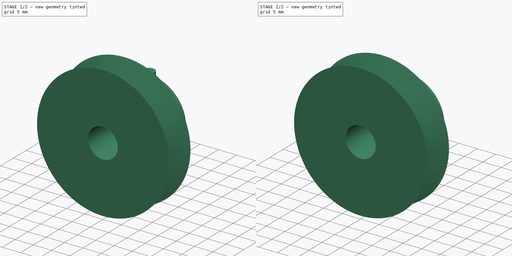
[diagram: build sequence overview — one tinted view per stage of 2, left to right]
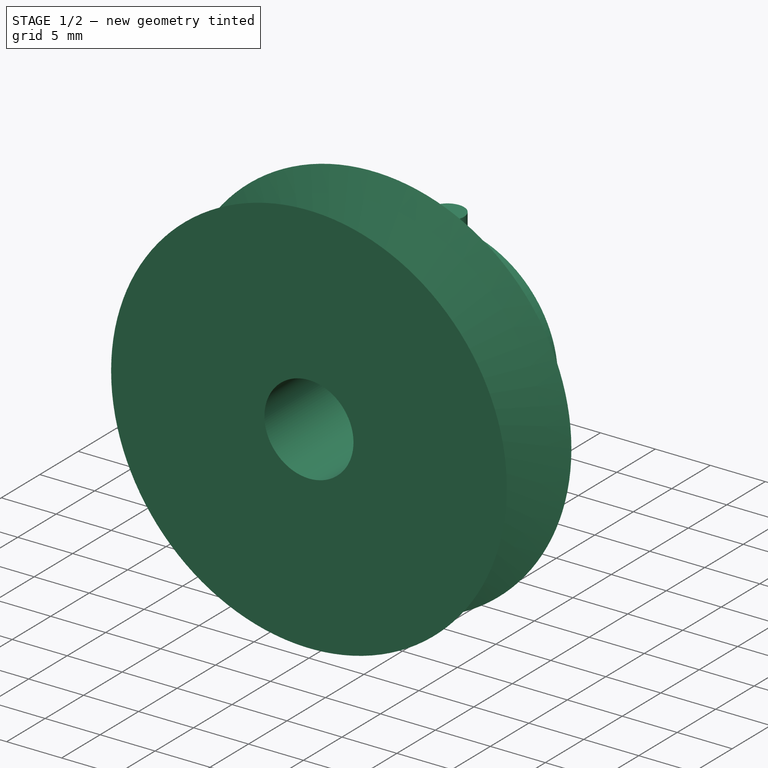
[diagram: stage 1 of 2 — iso view after this stage's code; geometry added in this stage tinted green]
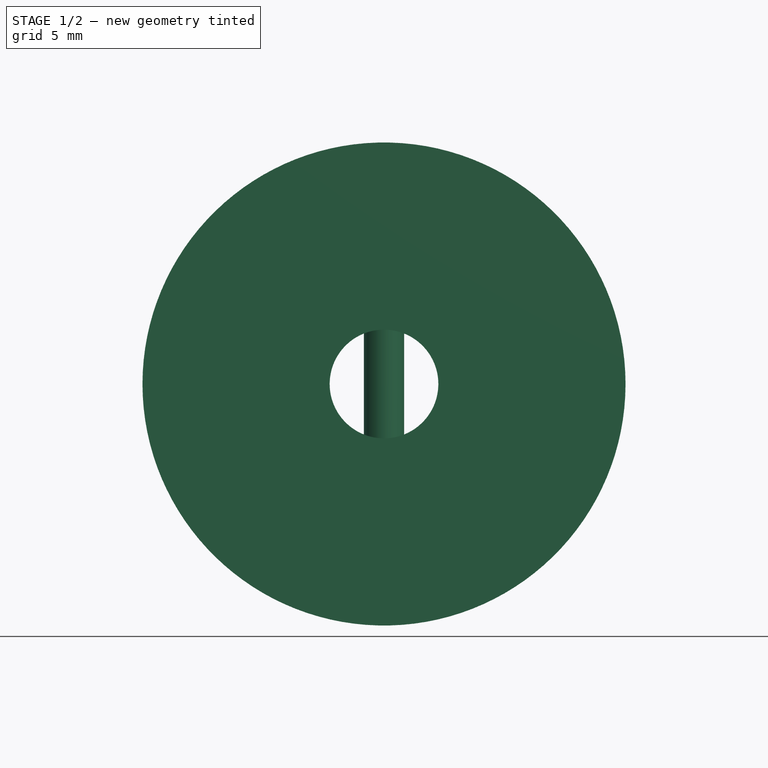
[diagram: stage 1 of 2 — front view after this stage's code; geometry added in this stage tinted green]
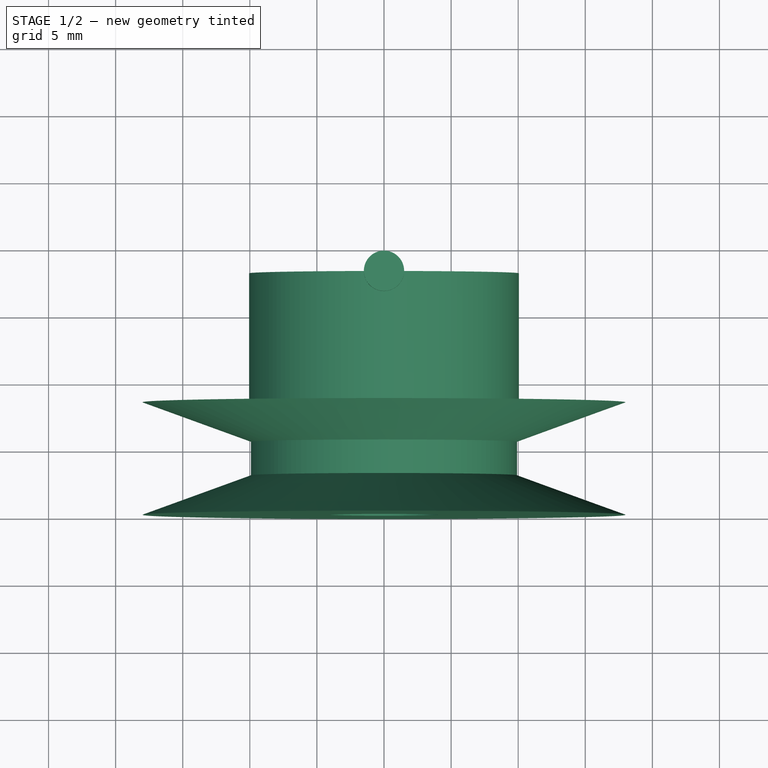
[diagram: stage 1 of 2 — top view after this stage's code; geometry added in this stage tinted green]
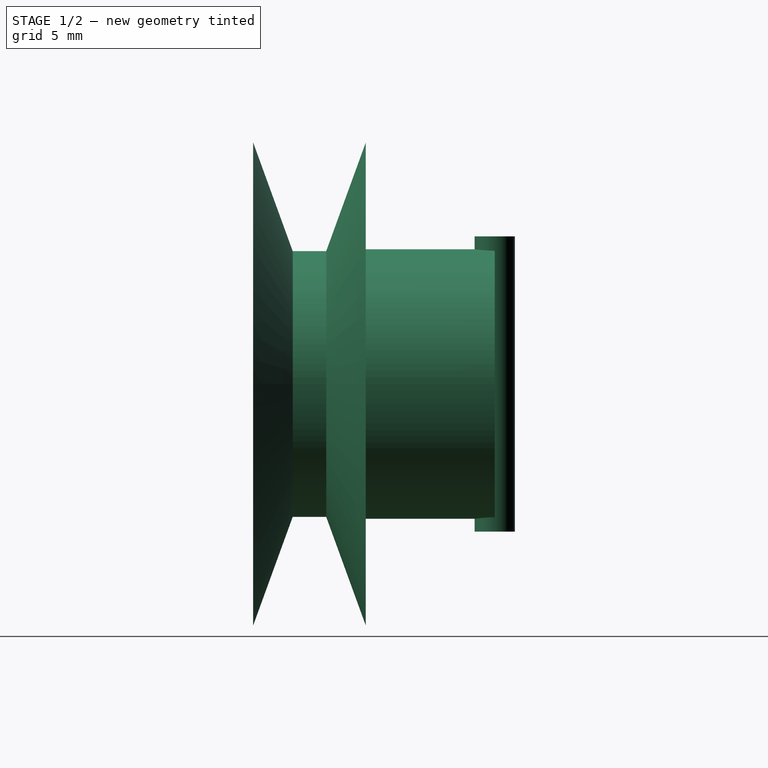
[diagram: stage 1 of 2 — right view after this stage's code; geometry added in this stage tinted green]
FCSTD DOCUMENT  (FreeCAD 0.18R16110 (Git))
Label: pulleysmall
License: All rights reserved
LicenseURL: http://en.wikipedia.org/wiki/All_rights_reserved
objects: Sketcher::SketchObject×1, Part::Revolution×1, Part::Cylinder×1, Part::Cut×1
note: 4 computed .brp shape members not serialized (recipe doc carries the construction recipe); baked Part::Feature solids carry a one-line shape summary decoded from their .brp

FEATURE [Sketcher::SketchObject] Sketch
  sketch-geometry (8):
    g0: LineSegment StartX=4.05 StartY=0 StartZ=0 EndX=4.05 EndY=18 EndZ=0
    g1: LineSegment StartX=4.05 StartY=18 StartZ=0 EndX=10.05 EndY=18 EndZ=0
    g2: LineSegment StartX=10.05 StartY=18 StartZ=0 EndX=10.05 EndY=8.38959 EndZ=0
    g3: LineSegment StartX=10.05 StartY=8.38959 StartZ=0 EndX=18 EndY=8.38959 EndZ=0
    g4: LineSegment StartX=18 StartY=8.38959 StartZ=0 EndX=9.90925 EndY=5.44479 EndZ=0
    g5: LineSegment StartX=9.90925 StartY=5.44479 StartZ=0 EndX=9.90925 EndY=2.94479 EndZ=0
    g6: LineSegment StartX=9.90925 StartY=2.94479 StartZ=0 EndX=18 EndY=4e-16 EndZ=0
    g7: LineSegment StartX=18 StartY=4e-16 StartZ=0 EndX=4.05 EndY=0 EndZ=0
  constraints (24):
    c: PointOnObject(g0,g-1)
    c: Vertical(g0)
    c: Coincident(g0,g1)
    c: Horizontal(g1)
    c: Coincident(g1,g2)
    c: Vertical(g2)
    c: Coincident(g2,g3)
    c: Horizontal(g3)
    c: Coincident(g3,g4)
    c: Coincident(g4,g5)
    c: Vertical(g5)
    c: Coincident(g5,g6)
    c: PointOnObject(g6,g-1)
    c: Coincident(g6,g7)
    c: Coincident(g7,g0)
    c: Distance(g5) = 2.5
    c: Equal(g6,g4)
    c: Distance(g6) = 8.61
    c: Angle(g6,g4) = 0.698132
    c: DistanceX(g0) = 4.05
    c: Distance(g0) = 18
    c: Distance(g1) = 6
    c: Angle(g3,g4) = 0.349066
    c: DistanceX(g6) = 18
FEATURE [Part::Revolution] Revolve
  Angle = 360
  Axis = (0,1,0)
  Base = (0,0,0)
  FaceMakerClass = Part::FaceMakerBullseye
  Solid = true
  Source = -> Sketch
  Symmetric = false
FEATURE [Part::Cylinder] Cylinder
  Angle = 360
  AttacherType = Attacher::AttachEngine3D
  Height = 22
  Placement = pos=(0,18,-11) rot=(0,0,1;0rad)
  Radius = 1.5
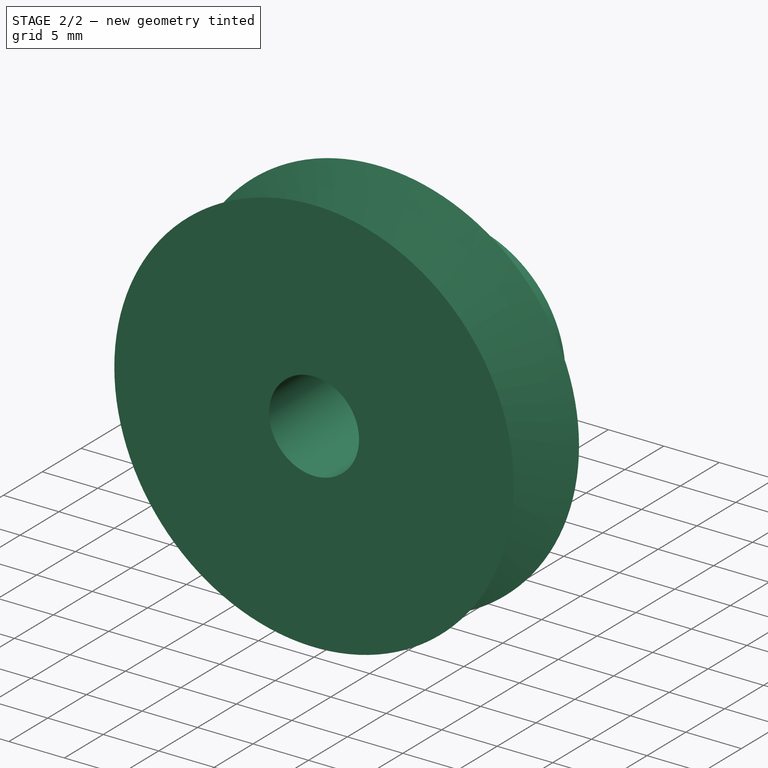
[diagram: stage 2 of 2 — iso view after this stage's code; geometry added in this stage tinted green]
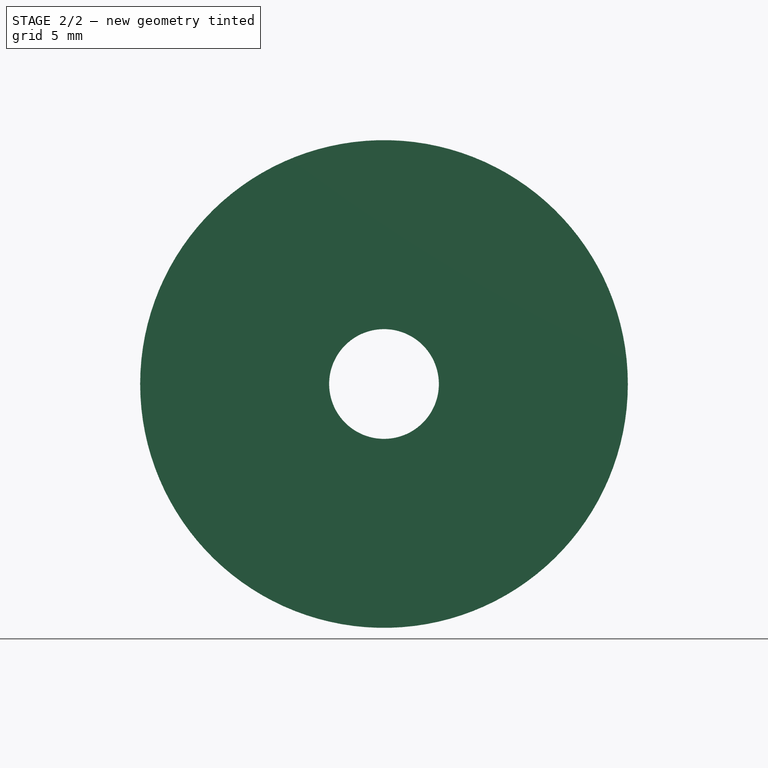
[diagram: stage 2 of 2 — front view after this stage's code; geometry added in this stage tinted green]
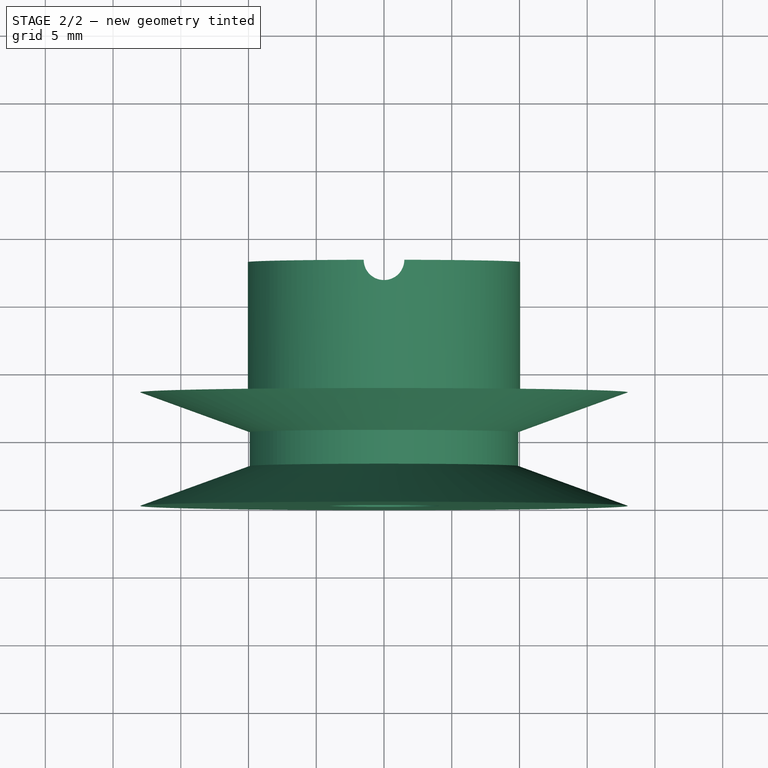
[diagram: stage 2 of 2 — top view after this stage's code; geometry added in this stage tinted green]
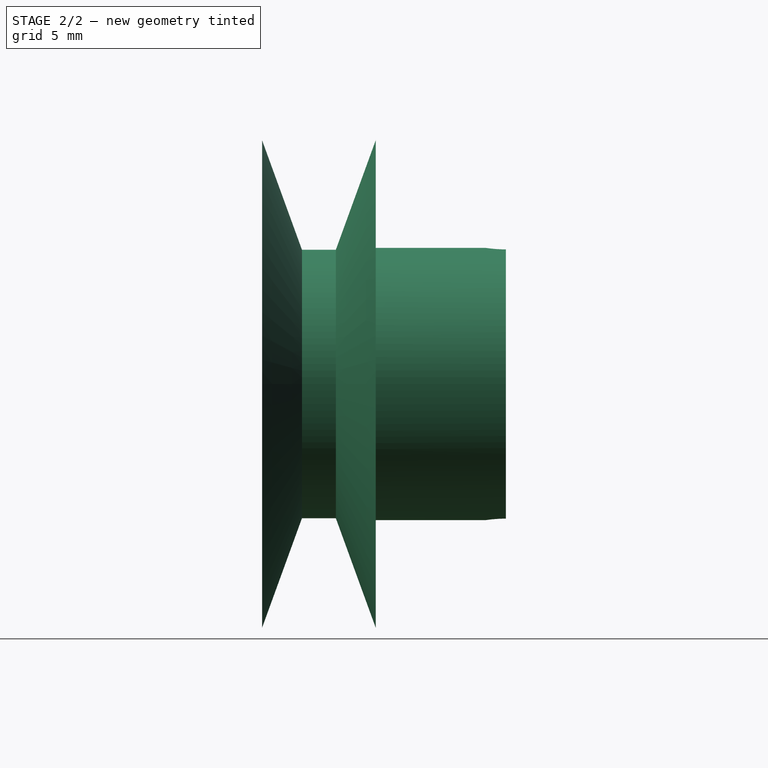
[diagram: stage 2 of 2 — right view after this stage's code; geometry added in this stage tinted green]
FEATURE [Part::Cut] Cut
  Base = -> Revolve
  Tool = -> Cylinder
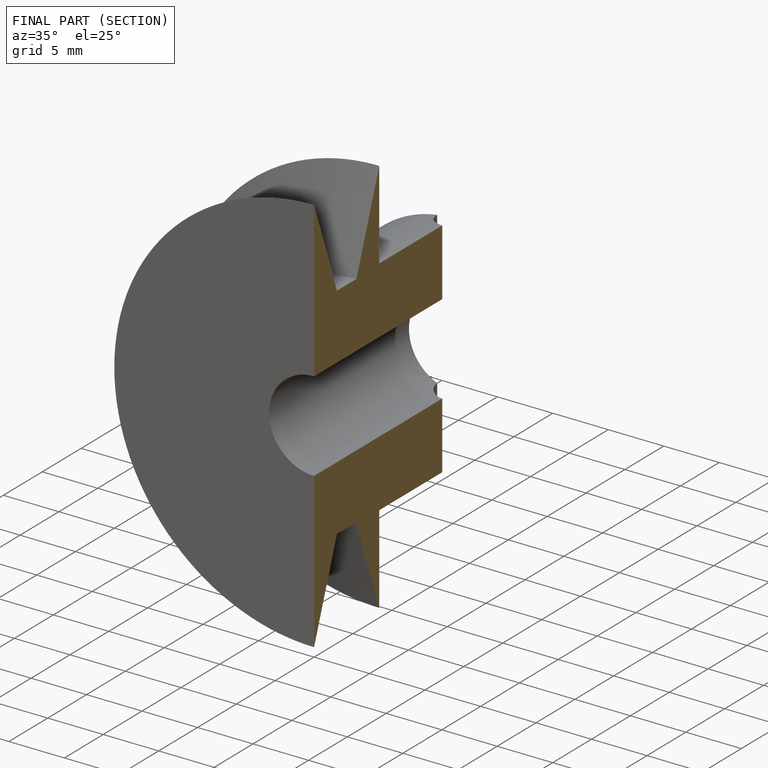
[diagram: finished part — half-section view (interior)]
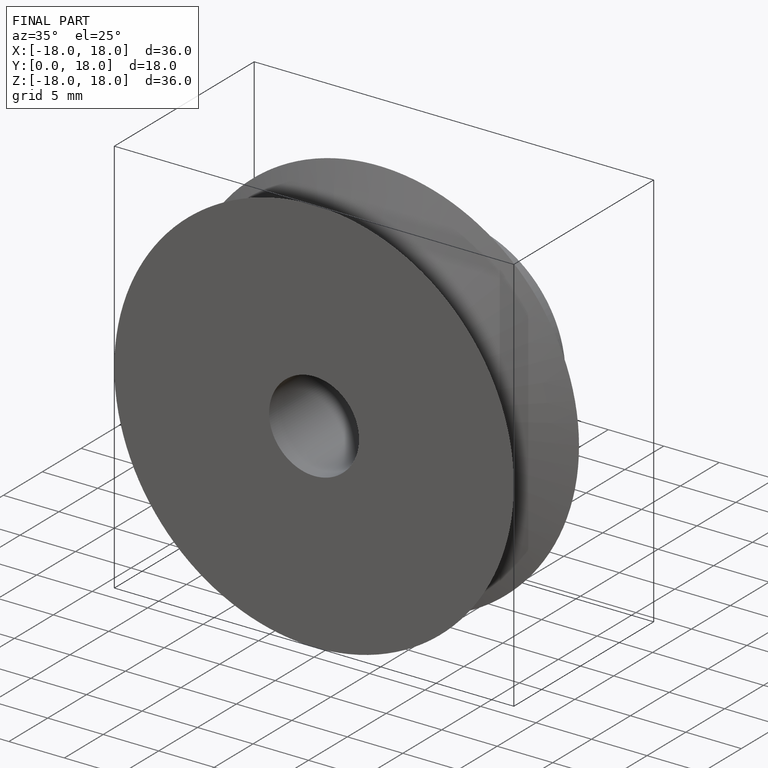
[diagram: finished part — iso view with bounding-box wireframe]
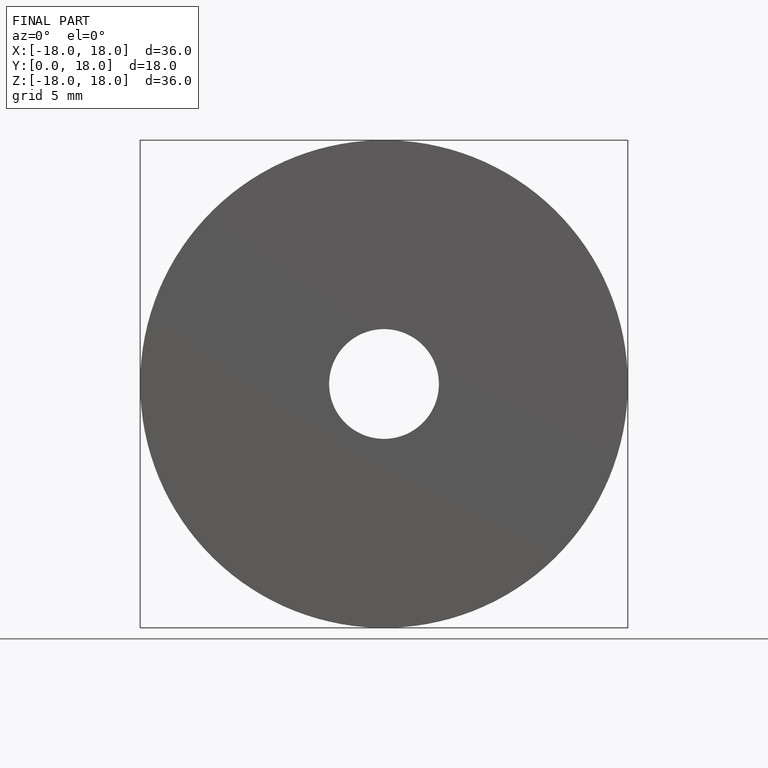
[diagram: finished part — front view with bounding-box wireframe]
